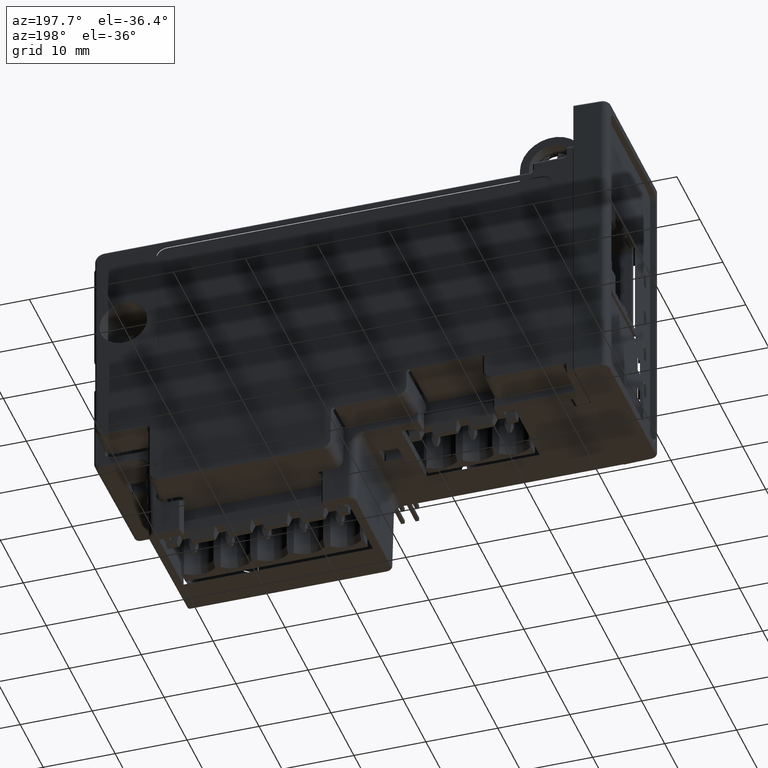
[diagram: clean part render]
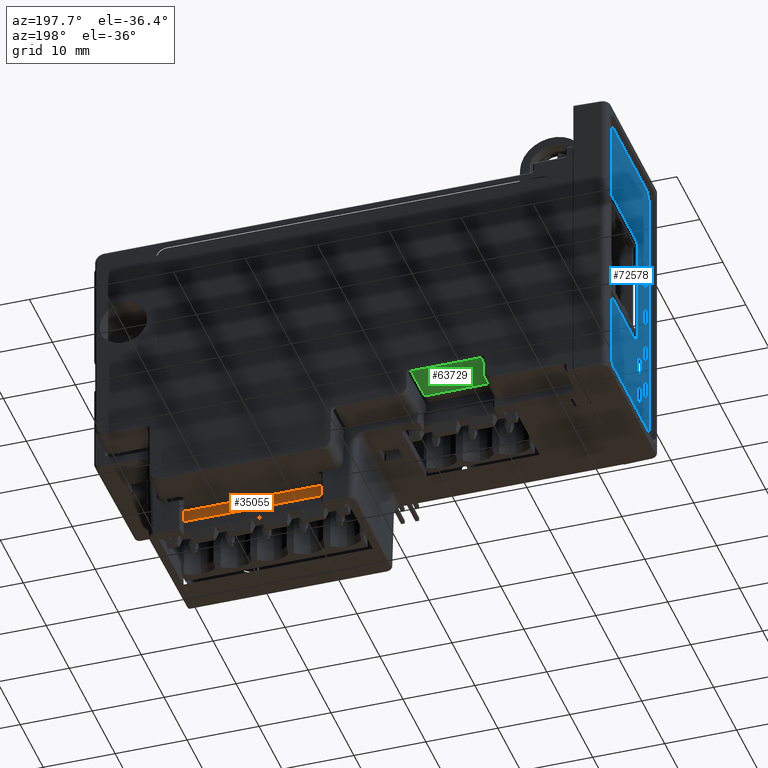
[diagram: same view with three faces highlighted in distinct colors, each labeled with its STEP entity id]
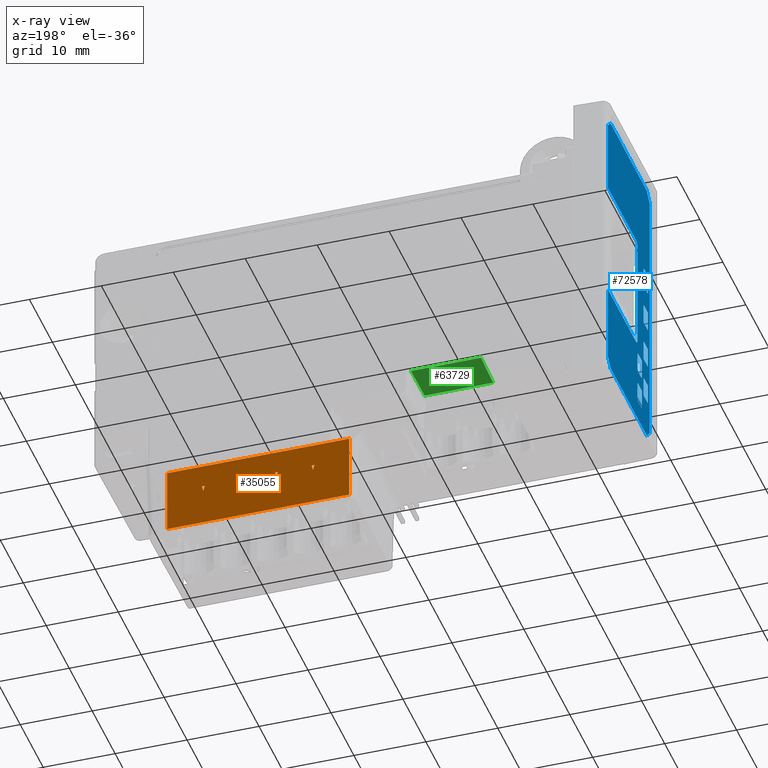
[diagram: x-ray of the same camera — body ghosted, the three highlighted faces saturated]
A machine part, auxiliary view with three faces highlighted in distinct colors.
The next image is the same camera in x-ray (body ghosted, the three faces saturated) — at least one of them is partly hidden behind the body in this view.
Their STEP definitions:

[orange] entity #35055 — the highlighted planar face has unit normal (0, -1, 0).
#31908=DIRECTION('',(0.E0,0.E0,1.E0));
#31909=VECTOR('',#31908,9.2E0);
#31910=CARTESIAN_POINT('',(3.007454417553E1,-1.915609228299E-1,
-1.779843086233E1));
#31911=LINE('',#31910,#31909);
#31912=DIRECTION('',(1.E0,0.E0,0.E0));
#31913=VECTOR('',#31912,2.532E1);
#31914=CARTESIAN_POINT('',(4.754544175528E0,-1.915609228299E-1,
-8.598430862327E0));
#31915=LINE('',#31914,#31913);
#31916=DIRECTION('',(0.E0,0.E0,-1.E0));
#31917=VECTOR('',#31916,9.2E0);
#31918=CARTESIAN_POINT('',(4.754544175528E0,-1.915609228299E-1,
-8.598430862327E0));
#31919=LINE('',#31918,#31917);
#31920=DIRECTION('',(-1.E0,0.E0,0.E0));
#31921=VECTOR('',#31920,2.532E1);
#31922=CARTESIAN_POINT('',(3.007454417553E1,-1.915609228299E-1,
-1.779843086233E1));
#31923=LINE('',#31922,#31921);
#31924=DIRECTION('',(-2.588190451025E-1,0.E0,-9.659258262891E-1));
#31925=VECTOR('',#31924,7.764571353082E-1);
#31926=CARTESIAN_POINT('',(1.507550606985E1,-1.915609228299E-1,
-1.184843086233E1));
#31927=LINE('',#31926,#31925);
#31928=DIRECTION('',(-2.588190451022E-1,0.E0,9.659258262892E-1));
#31929=VECTOR('',#31928,7.764571353082E-1);
#31930=CARTESIAN_POINT('',(1.487454417553E1,-1.915609228299E-1,
-1.259843086233E1));
#31931=LINE('',#31930,#31929);
#31932=DIRECTION('',(1.E0,0.E0,0.E0));
#31933=VECTOR('',#31932,4.019237886468E-1);
#31934=CARTESIAN_POINT('',(1.467358228120E1,-1.915609228299E-1,
-1.184843086233E1));
#31935=LINE('',#31934,#31933);
#31936=DIRECTION('',(-2.588190451025E-1,0.E0,-9.659258262891E-1));
#31937=VECTOR('',#31936,7.764571353082E-1);
#31938=CARTESIAN_POINT('',(2.015550606985E1,-1.915609228299E-1,
-1.184843086233E1));
#31939=LINE('',#31938,#31937);
#31940=DIRECTION('',(-2.588190451022E-1,0.E0,9.659258262892E-1));
#31941=VECTOR('',#31940,7.764571353082E-1);
#31942=CARTESIAN_POINT('',(1.995454417553E1,-1.915609228299E-1,
-1.259843086233E1));
#31943=LINE('',#31942,#31941);
#31944=DIRECTION('',(1.E0,0.E0,0.E0));
#31945=VECTOR('',#31944,4.019237886468E-1);
#31946=CARTESIAN_POINT('',(1.975358228120E1,-1.915609228299E-1,
-1.184843086233E1));
#31947=LINE('',#31946,#31945);
#31948=DIRECTION('',(-2.588190451025E-1,0.E0,-9.659258262891E-1));
#31949=VECTOR('',#31948,7.764571353080E-1);
#31950=CARTESIAN_POINT('',(2.523550606985E1,-1.915609228299E-1,
-1.184843086233E1));
#31951=LINE('',#31950,#31949);
#31952=DIRECTION('',(-2.588190451022E-1,0.E0,9.659258262892E-1));
#31953=VECTOR('',#31952,7.764571353080E-1);
#31954=CARTESIAN_POINT('',(2.503454417553E1,-1.915609228299E-1,
-1.259843086233E1));
#31955=LINE('',#31954,#31953);
#31956=DIRECTION('',(1.E0,0.E0,0.E0));
#31957=VECTOR('',#31956,4.019237886467E-1);
#31958=CARTESIAN_POINT('',(2.483358228120E1,-1.915609228299E-1,
-1.184843086233E1));
#31959=LINE('',#31958,#31957);
#31960=DIRECTION('',(-2.588190451025E-1,0.E0,-9.659258262891E-1));
#31961=VECTOR('',#31960,7.764571353083E-1);
#31962=CARTESIAN_POINT('',(9.995506069852E0,-1.915609228299E-1,
-1.184843086233E1));
#31963=LINE('',#31962,#31961);
#31964=DIRECTION('',(-2.588190451022E-1,0.E0,9.659258262892E-1));
#31965=VECTOR('',#31964,7.764571353082E-1);
#31966=CARTESIAN_POINT('',(9.794544175528E0,-1.915609228299E-1,
-1.259843086233E1));
#31967=LINE('',#31966,#31965);
#31968=DIRECTION('',(1.E0,0.E0,0.E0));
#31969=VECTOR('',#31968,4.019237886468E-1);
#31970=CARTESIAN_POINT('',(9.593582281205E0,-1.915609228299E-1,
-1.184843086233E1));
#31971=LINE('',#31970,#31969);
#34251=CARTESIAN_POINT('',(2.523550606985E1,-1.915609228299E-1,
-1.184843086233E1));
#34252=CARTESIAN_POINT('',(2.483358228120E1,-1.915609228299E-1,
-1.184843086233E1));
#34253=VERTEX_POINT('',#34251);
#34254=VERTEX_POINT('',#34252);
#34255=CARTESIAN_POINT('',(2.503454417553E1,-1.915609228299E-1,
-1.259843086233E1));
#34256=VERTEX_POINT('',#34255);
#34271=CARTESIAN_POINT('',(1.487454417553E1,-1.915609228299E-1,
-1.259843086233E1));
#34272=CARTESIAN_POINT('',(1.507550606985E1,-1.915609228299E-1,
-1.184843086233E1));
#34273=VERTEX_POINT('',#34271);
#34274=VERTEX_POINT('',#34272);
#34447=CARTESIAN_POINT('',(2.015550606985E1,-1.915609228299E-1,
-1.184843086233E1));
#34448=CARTESIAN_POINT('',(1.975358228120E1,-1.915609228299E-1,
-1.184843086233E1));
#34449=VERTEX_POINT('',#34447);
#34450=VERTEX_POINT('',#34448);
#34451=CARTESIAN_POINT('',(1.995454417553E1,-1.915609228299E-1,
-1.259843086233E1));
#34452=VERTEX_POINT('',#34451);
#34489=CARTESIAN_POINT('',(1.467358228120E1,-1.915609228299E-1,
-1.184843086233E1));
#34490=VERTEX_POINT('',#34489);
#34611=CARTESIAN_POINT('',(9.593582281205E0,-1.915609228299E-1,
-1.184843086233E1));
#34612=CARTESIAN_POINT('',(9.794544175528E0,-1.915609228299E-1,
-1.259843086233E1));
#34613=VERTEX_POINT('',#34611);
#34614=VERTEX_POINT('',#34612);
#34615=CARTESIAN_POINT('',(9.995506069852E0,-1.915609228299E-1,
-1.184843086233E1));
#34616=VERTEX_POINT('',#34615);
#34718=CARTESIAN_POINT('',(3.007454417553E1,-1.915609228299E-1,
-8.598430862327E0));
#34720=VERTEX_POINT('',#34718);
#34722=CARTESIAN_POINT('',(4.754544175528E0,-1.915609228299E-1,
-8.598430862327E0));
#34724=VERTEX_POINT('',#34722);
#34745=CARTESIAN_POINT('',(3.007454417553E1,-1.915609228299E-1,
-1.779843086233E1));
#34746=VERTEX_POINT('',#34745);
#34747=CARTESIAN_POINT('',(4.754544175528E0,-1.915609228299E-1,
-1.779843086233E1));
#34748=VERTEX_POINT('',#34747);
#35008=CARTESIAN_POINT('',(1.340356056786E1,-1.915609228299E-1,
-1.313943011801E1));
#35009=DIRECTION('',(0.E0,-1.E0,0.E0));
#35010=DIRECTION('',(0.E0,0.E0,-1.E0));
#35011=AXIS2_PLACEMENT_3D('',#35008,#35009,#35010);
#35012=PLANE('',#35011);
#35014=ORIENTED_EDGE('',*,*,#35013,.T.);
#35016=ORIENTED_EDGE('',*,*,#35015,.F.);
#35018=ORIENTED_EDGE('',*,*,#35017,.T.);
#35020=ORIENTED_EDGE('',*,*,#35019,.F.);
#35021=EDGE_LOOP('',(#35014,#35016,#35018,#35020));
#35022=FACE_OUTER_BOUND('',#35021,.F.);
#35024=ORIENTED_EDGE('',*,*,#35023,.T.);
#35026=ORIENTED_EDGE('',*,*,#35025,.T.);
#35028=ORIENTED_EDGE('',*,*,#35027,.T.);
#35029=EDGE_LOOP('',(#35024,#35026,#35028));
#35030=FACE_BOUND('',#35029,.F.);
#35032=ORIENTED_EDGE('',*,*,#35031,.T.);
#35034=ORIENTED_EDGE('',*,*,#35033,.T.);
#35036=ORIENTED_EDGE('',*,*,#35035,.T.);
#35037=EDGE_LOOP('',(#35032,#35034,#35036));
#35038=FACE_BOUND('',#35037,.F.);
#35040=ORIENTED_EDGE('',*,*,#35039,.T.);
#35042=ORIENTED_EDGE('',*,*,#35041,.T.);
#35044=ORIENTED_EDGE('',*,*,#35043,.T.);
#35045=EDGE_LOOP('',(#35040,#35042,#35044));
#35046=FACE_BOUND('',#35045,.F.);
#35048=ORIENTED_EDGE('',*,*,#35047,.T.);
#35050=ORIENTED_EDGE('',*,*,#35049,.T.);
#35052=ORIENTED_EDGE('',*,*,#35051,.T.);
#35053=EDGE_LOOP('',(#35048,#35050,#35052));
#35054=FACE_BOUND('',#35053,.F.);
#35055=ADVANCED_FACE('',(#35022,#35030,#35038,#35046,#35054),#35012,.F.);
#35013=EDGE_CURVE('',#34746,#34720,#31911,.T.);
#35015=EDGE_CURVE('',#34724,#34720,#31915,.T.);
#35017=EDGE_CURVE('',#34724,#34748,#31919,.T.);
#35019=EDGE_CURVE('',#34746,#34748,#31923,.T.);
#35023=EDGE_CURVE('',#34274,#34273,#31927,.T.);
#35025=EDGE_CURVE('',#34273,#34490,#31931,.T.);
#35027=EDGE_CURVE('',#34490,#34274,#31935,.T.);
#35031=EDGE_CURVE('',#34449,#34452,#31939,.T.);
#35033=EDGE_CURVE('',#34452,#34450,#31943,.T.);
#35035=EDGE_CURVE('',#34450,#34449,#31947,.T.);
#35039=EDGE_CURVE('',#34253,#34256,#31951,.T.);
#35041=EDGE_CURVE('',#34256,#34254,#31955,.T.);
#35043=EDGE_CURVE('',#34254,#34253,#31959,.T.);
#35047=EDGE_CURVE('',#34616,#34614,#31963,.T.);
#35049=EDGE_CURVE('',#34614,#34613,#31967,.T.);
#35051=EDGE_CURVE('',#34613,#34616,#31971,.T.);

[blue] entity #72578 — the highlighted planar face has unit normal (-1, 0, 0).
#72037=DIRECTION('',(0.E0,-1.E0,0.E0));
#72038=VECTOR('',#72037,1.5E0);
#72039=CARTESIAN_POINT('',(-3.309145671053E1,-1.001156092283E1,
-3.198240752213E0));
#72040=LINE('',#72039,#72038);
#72041=CARTESIAN_POINT('',(-3.309145671053E1,-1.151156092283E1,
-2.998240752213E0));
#72042=DIRECTION('',(-1.E0,0.E0,0.E0));
#72043=DIRECTION('',(0.E0,0.E0,-1.E0));
#72044=AXIS2_PLACEMENT_3D('',#72041,#72042,#72043);
#72046=DIRECTION('',(0.E0,0.E0,1.E0));
#72047=VECTOR('',#72046,2.5E0);
#72048=CARTESIAN_POINT('',(-3.309145671053E1,-1.171156092283E1,
-2.998240752213E0));
#72049=LINE('',#72048,#72047);
#72050=CARTESIAN_POINT('',(-3.309145671053E1,-1.151156092283E1,
-4.982407522126E-1));
#72051=DIRECTION('',(-1.E0,0.E0,0.E0));
#72052=DIRECTION('',(0.E0,-1.E0,0.E0));
#72053=AXIS2_PLACEMENT_3D('',#72050,#72051,#72052);
#72055=DIRECTION('',(0.E0,1.E0,0.E0));
#72056=VECTOR('',#72055,1.5E0);
#72057=CARTESIAN_POINT('',(-3.309145671053E1,-1.151156092283E1,
-2.982407522126E-1));
#72058=LINE('',#72057,#72056);
#72059=CARTESIAN_POINT('',(-3.309145671053E1,-1.001156092283E1,
-4.982407522126E-1));
#72060=DIRECTION('',(-1.E0,0.E0,0.E0));
#72061=DIRECTION('',(0.E0,0.E0,1.E0));
#72062=AXIS2_PLACEMENT_3D('',#72059,#72060,#72061);
#72064=DIRECTION('',(0.E0,0.E0,-1.E0));
#72065=VECTOR('',#72064,2.5E0);
#72066=CARTESIAN_POINT('',(-3.309145671053E1,-9.811560922830E0,
-4.982407522126E-1));
#72067=LINE('',#72066,#72065);
#72068=CARTESIAN_POINT('',(-3.309145671053E1,-1.001156092283E1,
-2.998240752213E0));
#72069=DIRECTION('',(-1.E0,0.E0,0.E0));
#72070=DIRECTION('',(0.E0,1.E0,0.E0));
#72071=AXIS2_PLACEMENT_3D('',#72068,#72069,#72070);
#72073=DIRECTION('',(0.E0,1.E0,0.E0));
#72074=VECTOR('',#72073,1.5E0);
#72075=CARTESIAN_POINT('',(-3.309145671053E1,-1.151156092283E1,
1.170175924779E1));
#72076=LINE('',#72075,#72074);
#72077=CARTESIAN_POINT('',(-3.309145671053E1,-1.001156092283E1,
1.150175924779E1));
#72078=DIRECTION('',(-1.E0,0.E0,0.E0));
#72079=DIRECTION('',(0.E0,0.E0,1.E0));
#72080=AXIS2_PLACEMENT_3D('',#72077,#72078,#72079);
#72082=DIRECTION('',(0.E0,0.E0,-1.E0));
#72083=VECTOR('',#72082,2.5E0);
#72084=CARTESIAN_POINT('',(-3.309145671053E1,-9.811560922830E0,
1.150175924779E1));
#72085=LINE('',#72084,#72083);
#72086=CARTESIAN_POINT('',(-3.309145671053E1,-1.001156092283E1,
9.001759247787E0));
#72087=DIRECTION('',(-1.E0,0.E0,0.E0));
#72088=DIRECTION('',(0.E0,1.E0,0.E0));
#72089=AXIS2_PLACEMENT_3D('',#72086,#72087,#72088);
#72091=DIRECTION('',(0.E0,-1.E0,0.E0));
#72092=VECTOR('',#72091,1.5E0);
#72093=CARTESIAN_POINT('',(-3.309145671053E1,-1.001156092283E1,
8.801759247787E0));
#72094=LINE('',#72093,#72092);
#72095=CARTESIAN_POINT('',(-3.309145671053E1,-1.151156092283E1,
9.001759247787E0));
#72096=DIRECTION('',(-1.E0,0.E0,0.E0));
#72097=DIRECTION('',(0.E0,0.E0,-1.E0));
#72098=AXIS2_PLACEMENT_3D('',#72095,#72096,#72097);
#72100=DIRECTION('',(0.E0,0.E0,1.E0));
#72101=VECTOR('',#72100,2.5E0);
#72102=CARTESIAN_POINT('',(-3.309145671053E1,-1.171156092283E1,
9.001759247787E0));
#72103=LINE('',#72102,#72101);
#72104=CARTESIAN_POINT('',(-3.309145671053E1,-1.151156092283E1,
1.150175924779E1));
#72105=DIRECTION('',(-1.E0,0.E0,0.E0));
#72106=DIRECTION('',(0.E0,-1.E0,0.E0));
#72107=AXIS2_PLACEMENT_3D('',#72104,#72105,#72106);
#72109=DIRECTION('',(0.E0,0.E0,-1.E0));
#72110=VECTOR('',#72109,2.5E0);
#72111=CARTESIAN_POINT('',(-3.309145671053E1,-9.811560922830E0,
5.501759247787E0));
#72112=LINE('',#72111,#72110);
#72113=CARTESIAN_POINT('',(-3.309145671053E1,-1.001156092283E1,
3.001759247787E0));
#72114=DIRECTION('',(-1.E0,0.E0,0.E0));
#72115=DIRECTION('',(0.E0,1.E0,0.E0));
#72116=AXIS2_PLACEMENT_3D('',#72113,#72114,#72115);
#72118=DIRECTION('',(0.E0,-1.E0,0.E0));
#72119=VECTOR('',#72118,1.5E0);
#72120=CARTESIAN_POINT('',(-3.309145671053E1,-1.001156092283E1,
2.801759247787E0));
#72121=LINE('',#72120,#72119);
#72122=CARTESIAN_POINT('',(-3.309145671053E1,-1.151156092283E1,
3.001759247787E0));
#72123=DIRECTION('',(-1.E0,0.E0,0.E0));
#72124=DIRECTION('',(0.E0,0.E0,-1.E0));
#72125=AXIS2_PLACEMENT_3D('',#72122,#72123,#72124);
#72127=DIRECTION('',(0.E0,0.E0,1.E0));
#72128=VECTOR('',#72127,2.5E0);
#72129=CARTESIAN_POINT('',(-3.309145671053E1,-1.171156092283E1,
3.001759247787E0));
#72130=LINE('',#72129,#72128);
#72131=CARTESIAN_POINT('',(-3.309145671053E1,-1.151156092283E1,
5.501759247787E0));
#72132=DIRECTION('',(-1.E0,0.E0,0.E0));
#72133=DIRECTION('',(0.E0,-1.E0,0.E0));
#72134=AXIS2_PLACEMENT_3D('',#72131,#72132,#72133);
#72136=DIRECTION('',(0.E0,1.E0,0.E0));
#72137=VECTOR('',#72136,1.5E0);
#72138=CARTESIAN_POINT('',(-3.309145671053E1,-1.151156092283E1,
5.701759247787E0));
#72139=LINE('',#72138,#72137);
#72140=CARTESIAN_POINT('',(-3.309145671053E1,-1.001156092283E1,
5.501759247787E0));
#72141=DIRECTION('',(-1.E0,0.E0,0.E0));
#72142=DIRECTION('',(0.E0,0.E0,1.E0));
#72143=AXIS2_PLACEMENT_3D('',#72140,#72141,#72142);
#72145=DIRECTION('',(0.E0,0.E0,-1.E0));
#72146=VECTOR('',#72145,2.5E0);
#72147=CARTESIAN_POINT('',(-3.309145671053E1,-7.161560922830E0,
1.741759247787E0));
#72148=LINE('',#72147,#72146);
#72149=CARTESIAN_POINT('',(-3.309145671053E1,-7.361560922830E0,
-7.582407522126E-1));
#72150=DIRECTION('',(-1.E0,0.E0,0.E0));
#72151=DIRECTION('',(0.E0,1.E0,0.E0));
#72152=AXIS2_PLACEMENT_3D('',#72149,#72150,#72151);
#72154=DIRECTION('',(0.E0,-1.E0,0.E0));
#72155=VECTOR('',#72154,1.5E0);
#72156=CARTESIAN_POINT('',(-3.309145671053E1,-7.361560922830E0,
-9.582407522126E-1));
#72157=LINE('',#72156,#72155);
#72158=CARTESIAN_POINT('',(-3.309145671053E1,-8.861560922830E0,
-7.582407522126E-1));
#72159=DIRECTION('',(-1.E0,0.E0,0.E0));
#72160=DIRECTION('',(0.E0,0.E0,-1.E0));
#72161=AXIS2_PLACEMENT_3D('',#72158,#72159,#72160);
#72163=DIRECTION('',(0.E0,0.E0,1.E0));
#72164=VECTOR('',#72163,2.5E0);
#72165=CARTESIAN_POINT('',(-3.309145671053E1,-9.061560922830E0,
-7.582407522126E-1));
#72166=LINE('',#72165,#72164);
#72167=CARTESIAN_POINT('',(-3.309145671053E1,-8.861560922830E0,
1.741759247787E0));
#72168=DIRECTION('',(-1.E0,0.E0,0.E0));
#72169=DIRECTION('',(0.E0,-1.E0,0.E0));
#72170=AXIS2_PLACEMENT_3D('',#72167,#72168,#72169);
#72172=DIRECTION('',(0.E0,1.E0,0.E0));
#72173=VECTOR('',#72172,1.5E0);
#72174=CARTESIAN_POINT('',(-3.309145671053E1,-8.861560922830E0,
1.941759247787E0));
#72175=LINE('',#72174,#72173);
#72176=CARTESIAN_POINT('',(-3.309145671053E1,-7.361560922830E0,
1.741759247787E0));
#72177=DIRECTION('',(-1.E0,0.E0,0.E0));
#72178=DIRECTION('',(0.E0,0.E0,1.E0));
#72179=AXIS2_PLACEMENT_3D('',#72176,#72177,#72178);
#72181=DIRECTION('',(0.E0,0.E0,-1.E0));
#72182=VECTOR('',#72181,2.5E0);
#72183=CARTESIAN_POINT('',(-3.309145671053E1,-7.161560922830E0,
-3.158240752213E0));
#72184=LINE('',#72183,#72182);
#72185=CARTESIAN_POINT('',(-3.309145671053E1,-7.361560922830E0,
-5.658240752213E0));
#72186=DIRECTION('',(-1.E0,0.E0,0.E0));
#72187=DIRECTION('',(0.E0,1.E0,1.776356839400E-14));
#72188=AXIS2_PLACEMENT_3D('',#72185,#72186,#72187);
#72190=DIRECTION('',(0.E0,-1.E0,0.E0));
#72191=VECTOR('',#72190,1.5E0);
#72192=CARTESIAN_POINT('',(-3.309145671053E1,-7.361560922830E0,
-5.858240752213E0));
#72193=LINE('',#72192,#72191);
#72194=CARTESIAN_POINT('',(-3.309145671053E1,-8.861560922830E0,
-5.658240752213E0));
#72195=DIRECTION('',(-1.E0,0.E0,0.E0));
#72196=DIRECTION('',(0.E0,0.E0,-1.E0));
#72197=AXIS2_PLACEMENT_3D('',#72194,#72195,#72196);
#72199=DIRECTION('',(0.E0,0.E0,1.E0));
#72200=VECTOR('',#72199,2.5E0);
#72201=CARTESIAN_POINT('',(-3.309145671053E1,-9.061560922830E0,
-5.658240752213E0));
#72202=LINE('',#72201,#72200);
#72203=CARTESIAN_POINT('',(-3.309145671053E1,-8.861560922830E0,
-3.158240752213E0));
#72204=DIRECTION('',(-1.E0,0.E0,0.E0));
#72205=DIRECTION('',(0.E0,-1.E0,0.E0));
#72206=AXIS2_PLACEMENT_3D('',#72203,#72204,#72205);
#72208=DIRECTION('',(0.E0,1.E0,0.E0));
#72209=VECTOR('',#72208,1.5E0);
#72210=CARTESIAN_POINT('',(-3.309145671053E1,-8.861560922830E0,
-2.958240752213E0));
#72211=LINE('',#72210,#72209);
#72212=CARTESIAN_POINT('',(-3.309145671053E1,-7.361560922830E0,
-3.158240752213E0));
#72213=DIRECTION('',(-1.E0,0.E0,0.E0));
#72214=DIRECTION('',(0.E0,0.E0,1.E0));
#72215=AXIS2_PLACEMENT_3D('',#72212,#72213,#72214);
#72217=DIRECTION('',(0.E0,1.E0,0.E0));
#72218=VECTOR('',#72217,1.5E0);
#72219=CARTESIAN_POINT('',(-3.309145671053E1,-1.151156092283E1,
1.770175924779E1));
#72220=LINE('',#72219,#72218);
#72221=CARTESIAN_POINT('',(-3.309145671053E1,-1.001156092283E1,
1.750175924779E1));
#72222=DIRECTION('',(-1.E0,0.E0,0.E0));
#72223=DIRECTION('',(0.E0,0.E0,1.E0));
#72224=AXIS2_PLACEMENT_3D('',#72221,#72222,#72223);
#72226=DIRECTION('',(0.E0,0.E0,-1.E0));
#72227=VECTOR('',#72226,2.5E0);
#72228=CARTESIAN_POINT('',(-3.309145671053E1,-9.811560922830E0,
1.750175924779E1));
#72229=LINE('',#72228,#72227);
#72230=CARTESIAN_POINT('',(-3.309145671053E1,-1.001156092283E1,
1.500175924779E1));
#72231=DIRECTION('',(-1.E0,0.E0,0.E0));
#72232=DIRECTION('',(0.E0,1.E0,0.E0));
#72233=AXIS2_PLACEMENT_3D('',#72230,#72231,#72232);
#72235=DIRECTION('',(0.E0,-1.E0,0.E0));
#72236=VECTOR('',#72235,1.5E0);
#72237=CARTESIAN_POINT('',(-3.309145671053E1,-1.001156092283E1,
1.480175924779E1));
#72238=LINE('',#72237,#72236);
#72239=CARTESIAN_POINT('',(-3.309145671053E1,-1.151156092283E1,
1.500175924779E1));
#72240=DIRECTION('',(-1.E0,0.E0,0.E0));
#72241=DIRECTION('',(0.E0,0.E0,-1.E0));
#72242=AXIS2_PLACEMENT_3D('',#72239,#72240,#72241);
#72244=DIRECTION('',(0.E0,0.E0,1.E0));
#72245=VECTOR('',#72244,2.5E0);
#72246=CARTESIAN_POINT('',(-3.309145671053E1,-1.171156092283E1,
1.500175924779E1));
#72247=LINE('',#72246,#72245);
#72248=CARTESIAN_POINT('',(-3.309145671053E1,-1.151156092283E1,
1.750175924779E1));
#72249=DIRECTION('',(-1.E0,0.E0,0.E0));
#72250=DIRECTION('',(0.E0,-1.E0,0.E0));
#72251=AXIS2_PLACEMENT_3D('',#72248,#72249,#72250);
#72253=DIRECTION('',(0.E0,-1.E0,0.E0));
#72254=VECTOR('',#72253,1.23E1);
#72255=CARTESIAN_POINT('',(-3.309145671053E1,5.838439077170E0,
3.306759247787E0));
#72256=LINE('',#72255,#72254);
#72257=CARTESIAN_POINT('',(-3.309145671053E1,-6.461560922830E0,
4.006759247787E0));
#72258=DIRECTION('',(-1.E0,0.E0,0.E0));
#72259=DIRECTION('',(0.E0,0.E0,-1.E0));
#72260=AXIS2_PLACEMENT_3D('',#72257,#72258,#72259);
#72262=DIRECTION('',(0.E0,0.E0,1.E0));
#72263=VECTOR('',#72262,1.53E1);
#72264=CARTESIAN_POINT('',(-3.309145671053E1,-7.161560922830E0,
4.006759247787E0));
#72265=LINE('',#72264,#72263);
#72266=CARTESIAN_POINT('',(-3.309145671053E1,-6.461560922830E0,
1.930675924779E1));
#72267=DIRECTION('',(-1.E0,0.E0,0.E0));
#72268=DIRECTION('',(0.E0,-1.E0,0.E0));
#72269=AXIS2_PLACEMENT_3D('',#72266,#72267,#72268);
#72271=DIRECTION('',(0.E0,1.E0,0.E0));
#72272=VECTOR('',#72271,1.23E1);
#72273=CARTESIAN_POINT('',(-3.309145671053E1,-6.461560922830E0,
2.000675924779E1));
#72274=LINE('',#72273,#72272);
#72275=DIRECTION('',(0.E0,0.E0,1.E0));
#72276=VECTOR('',#72275,1.018E1);
#72277=CARTESIAN_POINT('',(-3.309145671053E1,5.838439077170E0,
2.000675924779E1));
#72278=LINE('',#72277,#72276);
#72279=DIRECTION('',(0.E0,-7.071067811865E-1,7.071067811865E-1));
#72280=VECTOR('',#72279,1.796051224214E0);
#72281=CARTESIAN_POINT('',(-3.309145671053E1,5.838439077170E0,
3.018675924779E1));
#72282=LINE('',#72281,#72280);
#72283=DIRECTION('',(0.E0,-1.E0,0.E0));
#72284=VECTOR('',#72283,1.576E1);
#72285=CARTESIAN_POINT('',(-3.309145671053E1,4.568439077170E0,
3.145675924779E1));
#72286=LINE('',#72285,#72284);
#72287=DIRECTION('',(0.E0,-7.071067811865E-1,-7.071067811865E-1));
#72288=VECTOR('',#72287,1.796051224214E0);
#72289=CARTESIAN_POINT('',(-3.309145671053E1,-1.119156092283E1,
3.145675924779E1));
#72290=LINE('',#72289,#72288);
#72291=DIRECTION('',(0.E0,0.E0,-1.E0));
#72292=VECTOR('',#72291,3.776E1);
#72293=CARTESIAN_POINT('',(-3.309145671053E1,-1.246156092283E1,
3.018675924779E1));
#72294=LINE('',#72293,#72292);
#72295=DIRECTION('',(0.E0,7.071067811865E-1,-7.071067811865E-1));
#72296=VECTOR('',#72295,1.796051224214E0);
#72297=CARTESIAN_POINT('',(-3.309145671053E1,-1.246156092283E1,
-7.573240752213E0));
#72298=LINE('',#72297,#72296);
#72299=DIRECTION('',(0.E0,1.E0,0.E0));
#72300=VECTOR('',#72299,1.576E1);
#72301=CARTESIAN_POINT('',(-3.309145671053E1,-1.119156092283E1,
-8.843240752213E0));
#72302=LINE('',#72301,#72300);
#72303=DIRECTION('',(0.E0,7.071067811865E-1,7.071067811865E-1));
#72304=VECTOR('',#72303,1.796051224214E0);
#72305=CARTESIAN_POINT('',(-3.309145671053E1,4.568439077170E0,
-8.843240752213E0));
#72306=LINE('',#72305,#72304);
#72307=DIRECTION('',(0.E0,0.E0,1.E0));
#72308=VECTOR('',#72307,1.088E1);
#72309=CARTESIAN_POINT('',(-3.309145671053E1,5.838439077170E0,
-7.573240752213E0));
#72310=LINE('',#72309,#72308);
#72311=CARTESIAN_POINT('',(-3.309145671053E1,-9.811560922830E0,
-4.982407522126E-1));
#72312=CARTESIAN_POINT('',(-3.309145671053E1,-9.811560922830E0,
-2.998240752213E0));
#72313=VERTEX_POINT('',#72311);
#72314=VERTEX_POINT('',#72312);
#72315=CARTESIAN_POINT('',(-3.309145671053E1,-1.001156092283E1,
-3.198240752213E0));
#72316=CARTESIAN_POINT('',(-3.309145671053E1,-1.151156092283E1,
-3.198240752213E0));
#72317=VERTEX_POINT('',#72315);
#72318=VERTEX_POINT('',#72316);
#72319=CARTESIAN_POINT('',(-3.309145671053E1,-1.171156092283E1,
-2.998240752213E0));
#72320=CARTESIAN_POINT('',(-3.309145671053E1,-1.171156092283E1,
-4.982407522126E-1));
#72321=VERTEX_POINT('',#72319);
#72322=VERTEX_POINT('',#72320);
#72323=CARTESIAN_POINT('',(-3.309145671053E1,-1.151156092283E1,
-2.982407522126E-1));
#72324=CARTESIAN_POINT('',(-3.309145671053E1,-1.001156092283E1,
-2.982407522126E-1));
#72325=VERTEX_POINT('',#72323);
#72326=VERTEX_POINT('',#72324);
#72327=CARTESIAN_POINT('',(-3.309145671053E1,5.838439077170E0,
-7.573240752213E0));
#72328=CARTESIAN_POINT('',(-3.309145671053E1,4.568439077170E0,
-8.843240752213E0));
#72329=VERTEX_POINT('',#72327);
#72330=VERTEX_POINT('',#72328);
#72331=CARTESIAN_POINT('',(-3.309145671053E1,-1.119156092283E1,
-8.843240752213E0));
#72332=CARTESIAN_POINT('',(-3.309145671053E1,-1.246156092283E1,
-7.573240752213E0));
#72333=VERTEX_POINT('',#72331);
#72334=VERTEX_POINT('',#72332);
#72335=CARTESIAN_POINT('',(-3.309145671053E1,-1.246156092283E1,
3.018675924779E1));
#72336=CARTESIAN_POINT('',(-3.309145671053E1,-1.119156092283E1,
3.145675924779E1));
#72337=VERTEX_POINT('',#72335);
#72338=VERTEX_POINT('',#72336);
#72339=CARTESIAN_POINT('',(-3.309145671053E1,4.568439077170E0,
3.145675924779E1));
#72340=CARTESIAN_POINT('',(-3.309145671053E1,5.838439077170E0,
3.018675924779E1));
#72341=VERTEX_POINT('',#72339);
#72342=VERTEX_POINT('',#72340);
#72343=CARTESIAN_POINT('',(-3.309145671053E1,-9.811560922830E0,
5.501759247787E0));
#72344=CARTESIAN_POINT('',(-3.309145671053E1,-9.811560922830E0,
3.001759247787E0));
#72345=VERTEX_POINT('',#72343);
#72346=VERTEX_POINT('',#72344);
#72347=CARTESIAN_POINT('',(-3.309145671053E1,-1.001156092283E1,
2.801759247787E0));
#72348=CARTESIAN_POINT('',(-3.309145671053E1,-1.151156092283E1,
2.801759247787E0));
#72349=VERTEX_POINT('',#72347);
#72350=VERTEX_POINT('',#72348);
#72351=CARTESIAN_POINT('',(-3.309145671053E1,-1.171156092283E1,
3.001759247787E0));
#72352=CARTESIAN_POINT('',(-3.309145671053E1,-1.171156092283E1,
5.501759247787E0));
#72353=VERTEX_POINT('',#72351);
#72354=VERTEX_POINT('',#72352);
#72355=CARTESIAN_POINT('',(-3.309145671053E1,-1.151156092283E1,
5.701759247787E0));
#72356=CARTESIAN_POINT('',(-3.309145671053E1,-1.001156092283E1,
5.701759247787E0));
#72357=VERTEX_POINT('',#72355);
#72358=VERTEX_POINT('',#72356);
#72359=CARTESIAN_POINT('',(-3.309145671053E1,-9.811560922830E0,
1.150175924779E1));
#72360=CARTESIAN_POINT('',(-3.309145671053E1,-9.811560922830E0,
9.001759247787E0));
#72361=VERTEX_POINT('',#72359);
#72362=VERTEX_POINT('',#72360);
#72363=CARTESIAN_POINT('',(-3.309145671053E1,-1.001156092283E1,
8.801759247787E0));
#72364=CARTESIAN_POINT('',(-3.309145671053E1,-1.151156092283E1,
8.801759247787E0));
#72365=VERTEX_POINT('',#72363);
#72366=VERTEX_POINT('',#72364);
#72367=CARTESIAN_POINT('',(-3.309145671053E1,-1.171156092283E1,
9.001759247787E0));
#72368=CARTESIAN_POINT('',(-3.309145671053E1,-1.171156092283E1,
1.150175924779E1));
#72369=VERTEX_POINT('',#72367);
#72370=VERTEX_POINT('',#72368);
#72371=CARTESIAN_POINT('',(-3.309145671053E1,-1.151156092283E1,
1.170175924779E1));
#72372=CARTESIAN_POINT('',(-3.309145671053E1,-1.001156092283E1,
1.170175924779E1));
#72373=VERTEX_POINT('',#72371);
#72374=VERTEX_POINT('',#72372);
#72375=CARTESIAN_POINT('',(-3.309145671053E1,-9.811560922830E0,
1.750175924779E1));
#72376=CARTESIAN_POINT('',(-3.309145671053E1,-9.811560922830E0,
1.500175924779E1));
#72377=VERTEX_POINT('',#72375);
#72378=VERTEX_POINT('',#72376);
#72379=CARTESIAN_POINT('',(-3.309145671053E1,-1.001156092283E1,
1.480175924779E1));
#72380=CARTESIAN_POINT('',(-3.309145671053E1,-1.151156092283E1,
1.480175924779E1));
#72381=VERTEX_POINT('',#72379);
#72382=VERTEX_POINT('',#72380);
#72383=CARTESIAN_POINT('',(-3.309145671053E1,-1.171156092283E1,
1.500175924779E1));
#72384=CARTESIAN_POINT('',(-3.309145671053E1,-1.171156092283E1,
1.750175924779E1));
#72385=VERTEX_POINT('',#72383);
#72386=VERTEX_POINT('',#72384);
#72387=CARTESIAN_POINT('',(-3.309145671053E1,-1.151156092283E1,
1.770175924779E1));
#72388=CARTESIAN_POINT('',(-3.309145671053E1,-1.001156092283E1,
1.770175924779E1));
#72389=VERTEX_POINT('',#72387);
#72390=VERTEX_POINT('',#72388);
#72391=CARTESIAN_POINT('',(-3.309145671053E1,-7.161560922830E0,
-3.158240752213E0));
#72392=CARTESIAN_POINT('',(-3.309145671053E1,-7.161560922830E0,
-5.658240752213E0));
#72393=VERTEX_POINT('',#72391);
#72394=VERTEX_POINT('',#72392);
#72395=CARTESIAN_POINT('',(-3.309145671053E1,-7.361560922830E0,
-5.858240752213E0));
#72396=CARTESIAN_POINT('',(-3.309145671053E1,-8.861560922830E0,
-5.858240752213E0));
#72397=VERTEX_POINT('',#72395);
#72398=VERTEX_POINT('',#72396);
#72399=CARTESIAN_POINT('',(-3.309145671053E1,-9.061560922830E0,
-5.658240752213E0));
#72400=CARTESIAN_POINT('',(-3.309145671053E1,-9.061560922830E0,
-3.158240752213E0));
#72401=VERTEX_POINT('',#72399);
#72402=VERTEX_POINT('',#72400);
#72403=CARTESIAN_POINT('',(-3.309145671053E1,-8.861560922830E0,
-2.958240752213E0));
#72404=CARTESIAN_POINT('',(-3.309145671053E1,-7.361560922830E0,
-2.958240752213E0));
#72405=VERTEX_POINT('',#72403);
#72406=VERTEX_POINT('',#72404);
#72407=CARTESIAN_POINT('',(-3.309145671053E1,-7.161560922830E0,
1.741759247787E0));
#72408=CARTESIAN_POINT('',(-3.309145671053E1,-7.161560922830E0,
-7.582407522126E-1));
#72409=VERTEX_POINT('',#72407);
#72410=VERTEX_POINT('',#72408);
#72411=CARTESIAN_POINT('',(-3.309145671053E1,-7.361560922830E0,
-9.582407522126E-1));
#72412=CARTESIAN_POINT('',(-3.309145671053E1,-8.861560922830E0,
-9.582407522126E-1));
#72413=VERTEX_POINT('',#72411);
#72414=VERTEX_POINT('',#72412);
#72415=CARTESIAN_POINT('',(-3.309145671053E1,-9.061560922830E0,
-7.582407522126E-1));
#72416=CARTESIAN_POINT('',(-3.309145671053E1,-9.061560922830E0,
1.741759247787E0));
#72417=VERTEX_POINT('',#72415);
#72418=VERTEX_POINT('',#72416);
#72419=CARTESIAN_POINT('',(-3.309145671053E1,-8.861560922830E0,
1.941759247787E0));
#72420=CARTESIAN_POINT('',(-3.309145671053E1,-7.361560922830E0,
1.941759247787E0));
#72421=VERTEX_POINT('',#72419);
#72422=VERTEX_POINT('',#72420);
#72423=CARTESIAN_POINT('',(-3.309145671053E1,5.838439077170E0,
2.000675924779E1));
#72424=VERTEX_POINT('',#72423);
#72425=CARTESIAN_POINT('',(-3.309145671053E1,5.838439077170E0,
3.306759247787E0));
#72426=VERTEX_POINT('',#72425);
#72427=CARTESIAN_POINT('',(-3.309145671053E1,-6.461560922830E0,
3.306759247787E0));
#72428=VERTEX_POINT('',#72427);
#72429=CARTESIAN_POINT('',(-3.309145671053E1,-7.161560922830E0,
4.006759247787E0));
#72430=CARTESIAN_POINT('',(-3.309145671053E1,-7.161560922830E0,
1.930675924779E1));
#72431=VERTEX_POINT('',#72429);
#72432=VERTEX_POINT('',#72430);
#72433=CARTESIAN_POINT('',(-3.309145671053E1,-6.461560922830E0,
2.000675924779E1));
#72434=VERTEX_POINT('',#72433);
#72435=CARTESIAN_POINT('',(-3.309145671053E1,-3.311560922830E0,
1.130675924779E1));
#72436=DIRECTION('',(-1.E0,0.E0,0.E0));
#72437=DIRECTION('',(0.E0,-1.E0,0.E0));
#72438=AXIS2_PLACEMENT_3D('',#72435,#72436,#72437);
#72439=PLANE('',#72438);
#72441=ORIENTED_EDGE('',*,*,#72440,.T.);
#72443=ORIENTED_EDGE('',*,*,#72442,.T.);
#72445=ORIENTED_EDGE('',*,*,#72444,.T.);
#72447=ORIENTED_EDGE('',*,*,#72446,.T.);
#72449=ORIENTED_EDGE('',*,*,#72448,.T.);
#72451=ORIENTED_EDGE('',*,*,#72450,.T.);
#72453=ORIENTED_EDGE('',*,*,#72452,.T.);
#72455=ORIENTED_EDGE('',*,*,#72454,.T.);
#72457=ORIENTED_EDGE('',*,*,#72456,.T.);
#72459=ORIENTED_EDGE('',*,*,#72458,.T.);
#72461=ORIENTED_EDGE('',*,*,#72460,.T.);
#72463=ORIENTED_EDGE('',*,*,#72462,.T.);
#72465=ORIENTED_EDGE('',*,*,#72464,.T.);
#72467=ORIENTED_EDGE('',*,*,#72466,.T.);
#72468=EDGE_LOOP('',(#72441,#72443,#72445,#72447,#72449,#72451,#72453,#72455,
#72457,#72459,#72461,#72463,#72465,#72467));
#72469=FACE_OUTER_BOUND('',#72468,.F.);
#72471=ORIENTED_EDGE('',*,*,#72470,.T.);
#72473=ORIENTED_EDGE('',*,*,#72472,.T.);
#72475=ORIENTED_EDGE('',*,*,#72474,.T.);
#72477=ORIENTED_EDGE('',*,*,#72476,.T.);
#72479=ORIENTED_EDGE('',*,*,#72478,.T.);
#72481=ORIENTED_EDGE('',*,*,#72480,.T.);
#72483=ORIENTED_EDGE('',*,*,#72482,.T.);
#72485=ORIENTED_EDGE('',*,*,#72484,.T.);
#72486=EDGE_LOOP('',(#72471,#72473,#72475,#72477,#72479,#72481,#72483,#72485));
#72487=FACE_BOUND('',#72486,.F.);
#72489=ORIENTED_EDGE('',*,*,#72488,.T.);
#72491=ORIENTED_EDGE('',*,*,#72490,.T.);
#72493=ORIENTED_EDGE('',*,*,#72492,.T.);
#72495=ORIENTED_EDGE('',*,*,#72494,.T.);
#72497=ORIENTED_EDGE('',*,*,#72496,.T.);
#72499=ORIENTED_EDGE('',*,*,#72498,.T.);
#72501=ORIENTED_EDGE('',*,*,#72500,.T.);
#72503=ORIENTED_EDGE('',*,*,#72502,.T.);
#72504=EDGE_LOOP('',(#72489,#72491,#72493,#72495,#72497,#72499,#72501,#72503));
#72505=FACE_BOUND('',#72504,.F.);
#72507=ORIENTED_EDGE('',*,*,#72506,.T.);
#72509=ORIENTED_EDGE('',*,*,#72508,.T.);
#72511=ORIENTED_EDGE('',*,*,#72510,.T.);
#72513=ORIENTED_EDGE('',*,*,#72512,.T.);
#72515=ORIENTED_EDGE('',*,*,#72514,.T.);
#72517=ORIENTED_EDGE('',*,*,#72516,.T.);
#72519=ORIENTED_EDGE('',*,*,#72518,.T.);
#72521=ORIENTED_EDGE('',*,*,#72520,.T.);
#72522=EDGE_LOOP('',(#72507,#72509,#72511,#72513,#72515,#72517,#72519,#72521));
#72523=FACE_BOUND('',#72522,.F.);
#72525=ORIENTED_EDGE('',*,*,#72524,.T.);
#72527=ORIENTED_EDGE('',*,*,#72526,.T.);
#72529=ORIENTED_EDGE('',*,*,#72528,.T.);
#72531=ORIENTED_EDGE('',*,*,#72530,.T.);
#72533=ORIENTED_EDGE('',*,*,#72532,.T.);
#72535=ORIENTED_EDGE('',*,*,#72534,.T.);
#72537=ORIENTED_EDGE('',*,*,#72536,.T.);
#72539=ORIENTED_EDGE('',*,*,#72538,.T.);
#72540=EDGE_LOOP('',(#72525,#72527,#72529,#72531,#72533,#72535,#72537,#72539));
#72541=FACE_BOUND('',#72540,.F.);
#72543=ORIENTED_EDGE('',*,*,#72542,.T.);
#72545=ORIENTED_EDGE('',*,*,#72544,.T.);
#72547=ORIENTED_EDGE('',*,*,#72546,.T.);
#72549=ORIENTED_EDGE('',*,*,#72548,.T.);
#72551=ORIENTED_EDGE('',*,*,#72550,.T.);
#72553=ORIENTED_EDGE('',*,*,#72552,.T.);
#72555=ORIENTED_EDGE('',*,*,#72554,.T.);
#72557=ORIENTED_EDGE('',*,*,#72556,.T.);
#72558=EDGE_LOOP('',(#72543,#72545,#72547,#72549,#72551,#72553,#72555,#72557));
#72559=FACE_BOUND('',#72558,.F.);
#72561=ORIENTED_EDGE('',*,*,#72560,.T.);
#72563=ORIENTED_EDGE('',*,*,#72562,.T.);
#72565=ORIENTED_EDGE('',*,*,#72564,.T.);
#72567=ORIENTED_EDGE('',*,*,#72566,.T.);
#72569=ORIENTED_EDGE('',*,*,#72568,.T.);
#72571=ORIENTED_EDGE('',*,*,#72570,.T.);
#72573=ORIENTED_EDGE('',*,*,#72572,.T.);
#72575=ORIENTED_EDGE('',*,*,#72574,.T.);
#72576=EDGE_LOOP('',(#72561,#72563,#72565,#72567,#72569,#72571,#72573,#72575));
#72577=FACE_BOUND('',#72576,.F.);
#72578=ADVANCED_FACE('',(#72469,#72487,#72505,#72523,#72541,#72559,#72577),
#72439,.T.);
#72045=CIRCLE('',#72044,2.E-1);
#72054=CIRCLE('',#72053,2.E-1);
#72063=CIRCLE('',#72062,2.E-1);
#72072=CIRCLE('',#72071,2.E-1);
#72081=CIRCLE('',#72080,2.E-1);
#72090=CIRCLE('',#72089,2.E-1);
#72099=CIRCLE('',#72098,2.E-1);
#72108=CIRCLE('',#72107,2.E-1);
#72117=CIRCLE('',#72116,2.E-1);
#72126=CIRCLE('',#72125,2.E-1);
#72135=CIRCLE('',#72134,2.E-1);
#72144=CIRCLE('',#72143,2.E-1);
#72153=CIRCLE('',#72152,2.E-1);
#72162=CIRCLE('',#72161,2.E-1);
#72171=CIRCLE('',#72170,2.E-1);
#72180=CIRCLE('',#72179,2.E-1);
#72189=CIRCLE('',#72188,2.E-1);
#72198=CIRCLE('',#72197,2.E-1);
#72207=CIRCLE('',#72206,2.E-1);
#72216=CIRCLE('',#72215,2.E-1);
#72225=CIRCLE('',#72224,2.E-1);
#72234=CIRCLE('',#72233,2.E-1);
#72243=CIRCLE('',#72242,2.E-1);
#72252=CIRCLE('',#72251,2.E-1);
#72261=CIRCLE('',#72260,7.E-1);
#72270=CIRCLE('',#72269,7.E-1);
#72440=EDGE_CURVE('',#72426,#72428,#72256,.T.);
#72442=EDGE_CURVE('',#72428,#72431,#72261,.T.);
#72444=EDGE_CURVE('',#72431,#72432,#72265,.T.);
#72446=EDGE_CURVE('',#72432,#72434,#72270,.T.);
#72448=EDGE_CURVE('',#72434,#72424,#72274,.T.);
#72450=EDGE_CURVE('',#72424,#72342,#72278,.T.);
#72452=EDGE_CURVE('',#72342,#72341,#72282,.T.);
#72454=EDGE_CURVE('',#72341,#72338,#72286,.T.);
#72456=EDGE_CURVE('',#72338,#72337,#72290,.T.);
#72458=EDGE_CURVE('',#72337,#72334,#72294,.T.);
#72460=EDGE_CURVE('',#72334,#72333,#72298,.T.);
#72462=EDGE_CURVE('',#72333,#72330,#72302,.T.);
#72464=EDGE_CURVE('',#72330,#72329,#72306,.T.);
#72466=EDGE_CURVE('',#72329,#72426,#72310,.T.);
#72470=EDGE_CURVE('',#72373,#72374,#72076,.T.);
#72472=EDGE_CURVE('',#72374,#72361,#72081,.T.);
#72474=EDGE_CURVE('',#72361,#72362,#72085,.T.);
#72476=EDGE_CURVE('',#72362,#72365,#72090,.T.);
#72478=EDGE_CURVE('',#72365,#72366,#72094,.T.);
#72480=EDGE_CURVE('',#72366,#72369,#72099,.T.);
#72482=EDGE_CURVE('',#72369,#72370,#72103,.T.);
#72484=EDGE_CURVE('',#72370,#72373,#72108,.T.);
#72488=EDGE_CURVE('',#72345,#72346,#72112,.T.);
#72490=EDGE_CURVE('',#72346,#72349,#72117,.T.);
#72492=EDGE_CURVE('',#72349,#72350,#72121,.T.);
#72494=EDGE_CURVE('',#72350,#72353,#72126,.T.);
#72496=EDGE_CURVE('',#72353,#72354,#72130,.T.);
#72498=EDGE_CURVE('',#72354,#72357,#72135,.T.);
#72500=EDGE_CURVE('',#72357,#72358,#72139,.T.);
#72502=EDGE_CURVE('',#72358,#72345,#72144,.T.);
#72506=EDGE_CURVE('',#72409,#72410,#72148,.T.);
#72508=EDGE_CURVE('',#72410,#72413,#72153,.T.);
#72510=EDGE_CURVE('',#72413,#72414,#72157,.T.);
#72512=EDGE_CURVE('',#72414,#72417,#72162,.T.);
#72514=EDGE_CURVE('',#72417,#72418,#72166,.T.);
#72516=EDGE_CURVE('',#72418,#72421,#72171,.T.);
#72518=EDGE_CURVE('',#72421,#72422,#72175,.T.);
#72520=EDGE_CURVE('',#72422,#72409,#72180,.T.);
#72524=EDGE_CURVE('',#72393,#72394,#72184,.T.);
#72526=EDGE_CURVE('',#72394,#72397,#72189,.T.);
#72528=EDGE_CURVE('',#72397,#72398,#72193,.T.);
#72530=EDGE_CURVE('',#72398,#72401,#72198,.T.);
#72532=EDGE_CURVE('',#72401,#72402,#72202,.T.);
#72534=EDGE_CURVE('',#72402,#72405,#72207,.T.);
#72536=EDGE_CURVE('',#72405,#72406,#72211,.T.);
#72538=EDGE_CURVE('',#72406,#72393,#72216,.T.);
#72542=EDGE_CURVE('',#72389,#72390,#72220,.T.);
#72544=EDGE_CURVE('',#72390,#72377,#72225,.T.);
#72546=EDGE_CURVE('',#72377,#72378,#72229,.T.);
#72548=EDGE_CURVE('',#72378,#72381,#72234,.T.);
#72550=EDGE_CURVE('',#72381,#72382,#72238,.T.);
#72552=EDGE_CURVE('',#72382,#72385,#72243,.T.);
#72554=EDGE_CURVE('',#72385,#72386,#72247,.T.);
#72556=EDGE_CURVE('',#72386,#72389,#72252,.T.);
#72560=EDGE_CURVE('',#72317,#72318,#72040,.T.);
#72562=EDGE_CURVE('',#72318,#72321,#72045,.T.);
#72564=EDGE_CURVE('',#72321,#72322,#72049,.T.);
#72566=EDGE_CURVE('',#72322,#72325,#72054,.T.);
#72568=EDGE_CURVE('',#72325,#72326,#72058,.T.);
#72570=EDGE_CURVE('',#72326,#72313,#72063,.T.);
#72572=EDGE_CURVE('',#72313,#72314,#72067,.T.);
#72574=EDGE_CURVE('',#72314,#72317,#72072,.T.);

[green] entity #63729 — the highlighted planar face has unit normal (0, -0.0175, 0.9998).
#57507=DIRECTION('',(-1.E0,2.192795375460E-9,3.690470599572E-9));
#57508=VECTOR('',#57507,9.749268870496E0);
#57509=CARTESIAN_POINT('',(-6.265822635692E0,7.543674798062E0,
-5.348655432724E0));
#57510=LINE('',#57509,#57508);
#57511=DIRECTION('',(-1.745042249411E-2,9.996954478412E-1,1.744976562412E-2));
#57512=VECTOR('',#57511,5.706973813465E0);
#57513=CARTESIAN_POINT('',(-1.591550240198E1,1.838439077170E0,
-5.448240752213E0));
#57514=LINE('',#57513,#57512);
#57515=DIRECTION('',(1.745029629369E-2,9.996954501523E-1,1.744975942539E-2));
#57516=VECTOR('',#57515,5.706973778887E0);
#57517=CARTESIAN_POINT('',(-6.365411019074E0,1.838439077170E0,
-5.448240752213E0));
#57518=LINE('',#57517,#57516);
#57559=DIRECTION('',(1.E0,0.E0,0.E0));
#57560=VECTOR('',#57559,9.550091382906E0);
#57561=CARTESIAN_POINT('',(-1.591550240198E1,1.838439077170E0,
-5.448240752213E0));
#57562=LINE('',#57561,#57560);
#57691=CARTESIAN_POINT('',(-1.601509150619E1,7.543674819440E0,
-5.348655396745E0));
#59003=CARTESIAN_POINT('',(-1.591550240198E1,1.838439077170E0,
-5.448240752213E0));
#59005=VERTEX_POINT('',#59003);
#59012=CARTESIAN_POINT('',(-6.365411019074E0,1.838439077170E0,
-5.448240752213E0));
#59013=VERTEX_POINT('',#59012);
#59039=VERTEX_POINT('',#57691);
#59042=CARTESIAN_POINT('',(-6.265822635692E0,7.543674798062E0,
-5.348655432724E0));
#59043=VERTEX_POINT('',#59042);
#63714=CARTESIAN_POINT('',(-1.724878219442E1,1.838439077170E0,
-5.448240752213E0));
#63715=DIRECTION('',(0.E0,-1.745240643728E-2,9.998476951564E-1));
#63716=DIRECTION('',(-1.E0,0.E0,0.E0));
#63717=AXIS2_PLACEMENT_3D('',#63714,#63715,#63716);
#63718=PLANE('',#63717);
#63720=ORIENTED_EDGE('',*,*,#63719,.T.);
#63722=ORIENTED_EDGE('',*,*,#63721,.F.);
#63724=ORIENTED_EDGE('',*,*,#63723,.T.);
#63726=ORIENTED_EDGE('',*,*,#63725,.T.);
#63727=EDGE_LOOP('',(#63720,#63722,#63724,#63726));
#63728=FACE_OUTER_BOUND('',#63727,.F.);
#63729=ADVANCED_FACE('',(#63728),#63718,.F.);
#63719=EDGE_CURVE('',#59043,#59039,#57510,.T.);
#63721=EDGE_CURVE('',#59005,#59039,#57514,.T.);
#63723=EDGE_CURVE('',#59005,#59013,#57562,.T.);
#63725=EDGE_CURVE('',#59013,#59043,#57518,.T.);